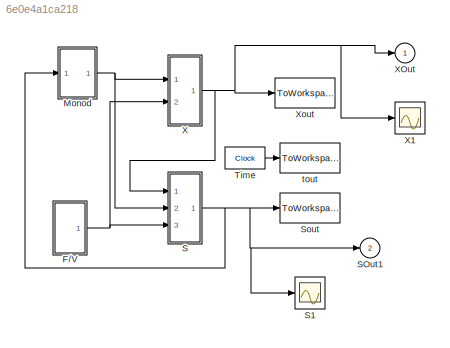
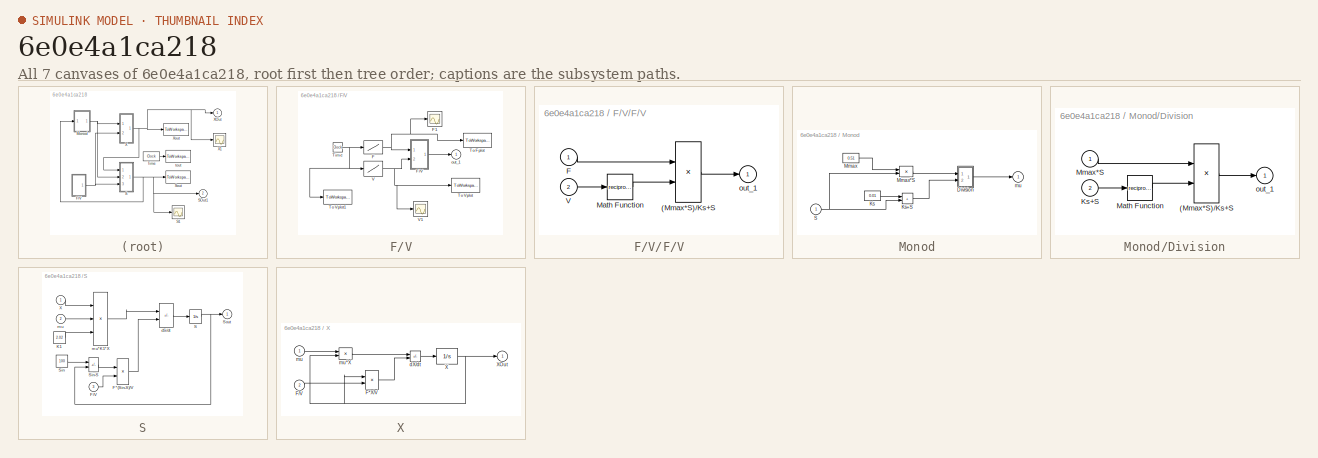
[diagram: thumbnail index - all 7 canvases of the model, root first then tree order]
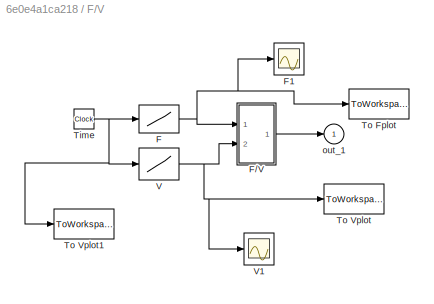
MODEL slx_6e0e4a1ca218
KIND model
CONFIG AbsTol = 1e-3
CONFIG EnableMultiTasking = on
CONFIG FixedStep = 0.056
CONFIG MaxStep = 0.001
CONFIG MinStep = auto
CONFIG RelTol = 1e-3
CONFIG SampleTimeConstraint = Unconstrained
CONFIG SolverName = VariableStepAuto
CONFIG StartTime = 6.69
CONFIG StopTime = 11.57
BLOCK [SubSystem] F//V
  Ports = [0, 1]
  RequestExecContextInheritance = off
  ShowPortLabels = none
BLOCK [Lookup] F//V/F
  InputValues = t
  Table = F
BLOCK [SubSystem] F//V/F//V
  Ports = [2, 1]
  RequestExecContextInheritance = off
  ShowPortLabels = none
BLOCK [Product] F//V/F//V/(Mmax*S)//Ks+S
  InputSameDT = on
  OutDataTypeStr = Inherit: Same as first input
  Ports = [2, 1]
  RndMeth = Zero
  SaturateOnIntegerOverflow = on
BLOCK [Inport] F//V/F//V/F
BLOCK [Math] F//V/F//V/Math Function
  Operator = reciprocal
  Ports = [1, 1]
  SignedPower = on
BLOCK [Inport] F//V/F//V/V
  Port = 2
BLOCK [Outport] F//V/F//V/out_1
BLOCK [Scope] F//V/F1
  Floating = off
  NumInputPorts = 1
  Ports = [1]
  ScopeSpecificationString = Simulink.scopes.TimeScopeBlockCfg('CurrentConfiguration', extmgr.ConfigurationSet(extmgr.Configuration('Core','General UI',true),extmgr.Configuration('Core','Source UI',true),extmgr.Configuration('Sources','WiredSimulink',true,'DataLoggingVariableName','ScopeData3'),extmgr.Configuration('Visuals','Time Domain',true,'SerializedDisplays',{struct('MinYLimReal','-0.02303','MaxYLimReal','0.20731','YLab...<+1443ch>
BLOCK [Clock] F//V/Time
BLOCK [ToWorkspace] F//V/To Fplot
  FixptAsFi = on
  MaxDataPoints = inf
  Ports = [1]
  SampleTime = -1
  VariableName = Fout
BLOCK [ToWorkspace] F//V/To Vplot
  FixptAsFi = on
  MaxDataPoints = inf
  Ports = [1]
  SampleTime = -1
  VariableName = Vout
BLOCK [ToWorkspace] F//V/To Vplot1
  FixptAsFi = on
  MaxDataPoints = inf
  Ports = [1]
  SampleTime = -1
  VariableName = tfeed
BLOCK [Lookup] F//V/V
  InputValues = t
  Table = V
BLOCK [Scope] F//V/V1
  Floating = off
  NumInputPorts = 1
  Ports = [1]
  ScopeSpecificationString = Simulink.scopes.TimeScopeBlockCfg('CurrentConfiguration', extmgr.ConfigurationSet(extmgr.Configuration('Core','General UI',true),extmgr.Configuration('Core','Source UI',true),extmgr.Configuration('Sources','WiredSimulink',true,'DataLoggingVariableName','ScopeData2'),extmgr.Configuration('Visuals','Time Domain',true,'SerializedDisplays',{struct('MinYLimReal','1.3231','MaxYLimReal','1.59209','YLabel...<+1410ch>
BLOCK [Outport] F//V/out_1
BLOCK [SubSystem] Monod
  Ports = [1, 1]
  RequestExecContextInheritance = off
  ShowPortLabels = none
BLOCK [SubSystem] Monod/Division
  Ports = [2, 1]
  RequestExecContextInheritance = off
  ShowPortLabels = none
BLOCK [Product] Monod/Division/(Mmax*S)//Ks+S
  InputSameDT = on
  OutDataTypeStr = Inherit: Same as first input
  Ports = [2, 1]
  RndMeth = Zero
  SaturateOnIntegerOverflow = on
BLOCK [Inport] Monod/Division/Ks+S
  Port = 2
BLOCK [Math] Monod/Division/Math Function
  Operator = reciprocal
  Ports = [1, 1]
  SignedPower = on
BLOCK [Inport] Monod/Division/Mmax*S
BLOCK [Outport] Monod/Division/out_1
BLOCK [Constant] Monod/Ks
  Value = 0.01
BLOCK [Sum] Monod/Ks+S
  IconShape = rectangular
  InputSameDT = on
  OutDataTypeStr = Inherit: Same as first input
  Ports = [2, 1]
  SaturateOnIntegerOverflow = on
BLOCK [Constant] Monod/Mmax
  Value = 0.51
BLOCK [Product] Monod/Mmax*S
  InputSameDT = on
  OutDataTypeStr = Inherit: Same as first input
  Ports = [2, 1]
  RndMeth = Zero
  SaturateOnIntegerOverflow = on
BLOCK [Inport] Monod/S
BLOCK [Outport] Monod/mu
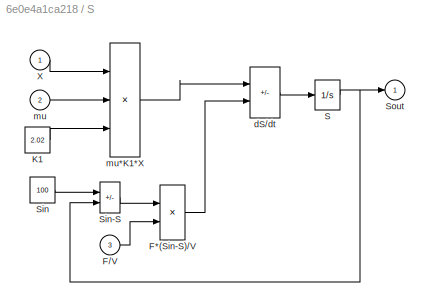
BLOCK [SubSystem] S
  Ports = [3, 1]
  RequestExecContextInheritance = off
  ShowPortLabels = none
BLOCK [Product] S/F*(Sin-S)//V
  InputSameDT = on
  OutDataTypeStr = Inherit: Same as first input
  Ports = [2, 1]
  RndMeth = Zero
  SaturateOnIntegerOverflow = on
BLOCK [Inport] S/F//V
  Port = 3
BLOCK [Constant] S/K1
  Value = 2.02
BLOCK [Integrator] S/S
  InitialCondition = Sd(1)
  LowerSaturationLimit = 0
  Ports = [1, 1]
  UpperSaturationLimit = 1000
BLOCK [Constant] S/Sin
  Value = 100
BLOCK [Sum] S/Sin-S
  IconShape = rectangular
  InputSameDT = on
  Inputs = +-
  OutDataTypeStr = Inherit: Same as first input
  Ports = [2, 1]
  SaturateOnIntegerOverflow = on
BLOCK [Outport] S/Sout
BLOCK [Inport] S/X
BLOCK [Sum] S/dS//dt
  IconShape = rectangular
  InputSameDT = on
  Inputs = -+
  OutDataTypeStr = Inherit: Same as first input
  Ports = [2, 1]
  SaturateOnIntegerOverflow = on
BLOCK [Inport] S/mu
  Port = 2
BLOCK [Product] S/mu*K1*X
  InputSameDT = on
  Inputs = 3
  OutDataTypeStr = Inherit: Same as first input
  Ports = [3, 1]
  RndMeth = Zero
  SaturateOnIntegerOverflow = on
BLOCK [Scope] S1
  Floating = off
  NumInputPorts = 1
  Ports = [1]
  ScopeSpecificationString = Simulink.scopes.TimeScopeBlockCfg('CurrentConfiguration', extmgr.ConfigurationSet(extmgr.Configuration('Core','General UI',true),extmgr.Configuration('Core','Source UI',true),extmgr.Configuration('Sources','WiredSimulink',true,'DataLoggingVariableName','ScopeData1'),extmgr.Configuration('Visuals','Time Domain',true,'SerializedDisplays',{struct('MinYLimReal','-0.09019','MaxYLimReal','0.91225','YLab...<+1416ch>
BLOCK [Outport] SOut1
  Port = 2
BLOCK [ToWorkspace] Sout
  MaxDataPoints = inf
  Ports = [1]
  SampleTime = -1
  VariableName = Sout
BLOCK [Clock] Time
  DisplayTime = on
BLOCK [SubSystem] X
  Ports = [2, 1]
  RequestExecContextInheritance = off
  ShowPortLabels = none
BLOCK [Product] X/F*X//V
  InputSameDT = on
  OutDataTypeStr = Inherit: Same as first input
  Ports = [2, 1]
  RndMeth = Zero
  SaturateOnIntegerOverflow = on
BLOCK [Inport] X/F//V
  Port = 2
BLOCK [Integrator] X/X
  InitialCondition = Xd(1)
  LowerSaturationLimit = 0
  Ports = [1, 1]
  UpperSaturationLimit = 1000
BLOCK [Outport] X/XOut
BLOCK [Sum] X/dX//dt
  IconShape = rectangular
  InputSameDT = on
  Inputs = +-
  OutDataTypeStr = Inherit: Same as first input
  Ports = [2, 1]
  SaturateOnIntegerOverflow = on
BLOCK [Inport] X/mu
BLOCK [Product] X/mu*X
  InputSameDT = on
  OutDataTypeStr = Inherit: Same as first input
  Ports = [2, 1]
  RndMeth = Zero
  SaturateOnIntegerOverflow = on
BLOCK [Scope] X1
  Floating = off
  NumInputPorts = 1
  Ports = [1]
  ScopeSpecificationString = Simulink.scopes.TimeScopeBlockCfg('CurrentConfiguration', extmgr.ConfigurationSet(extmgr.Configuration('Core','General UI',true),extmgr.Configuration('Core','Source UI',true),extmgr.Configuration('Sources','WiredSimulink',true),extmgr.Configuration('Visuals','Time Domain',true,'SerializedDisplays',{struct('MinYLimReal','0.38164','MaxYLimReal','9.08525','YLabelReal','','MinYLimMag','0.38164','MaxYL...<+1400ch>
BLOCK [Outport] XOut
BLOCK [ToWorkspace] Xout
  MaxDataPoints = inf
  Ports = [1]
  SampleTime = -1
  VariableName = Xout
BLOCK [ToWorkspace] tout
  MaxDataPoints = inf
  Ports = [1]
  SampleTime = -1
  VariableName = tout
LINE F//V/F//V/(Mmax*S)//Ks+S:1 -> F//V/F//V/out_1:1
LINE F//V/F//V/F:1 -> F//V/F//V/(Mmax*S)//Ks+S:1
LINE F//V/F//V/Math Function:1 -> F//V/F//V/(Mmax*S)//Ks+S:2
LINE F//V/F//V/V:1 -> F//V/F//V/Math Function:1
LINE F//V/F//V:1 -> F//V/out_1:1
NET F//V/F:1 -> F//V/F//V:1, F//V/F1:1, F//V/To Fplot:1
NET F//V/Time:1 -> F//V/F:1, F//V/To Vplot1:1, F//V/V:1
NET F//V/V:1 -> F//V/F//V:2, F//V/To Vplot:1, F//V/V1:1
NET F//V:1 -> S:3, X:2
LINE Monod/Division/(Mmax*S)//Ks+S:1 -> Monod/Division/out_1:1
LINE Monod/Division/Ks+S:1 -> Monod/Division/Math Function:1
LINE Monod/Division/Math Function:1 -> Monod/Division/(Mmax*S)//Ks+S:2
LINE Monod/Division/Mmax*S:1 -> Monod/Division/(Mmax*S)//Ks+S:1
LINE Monod/Division:1 -> Monod/mu:1
LINE Monod/Ks+S:1 -> Monod/Division:2
LINE Monod/Ks:1 -> Monod/Ks+S:1
LINE Monod/Mmax*S:1 -> Monod/Division:1
LINE Monod/Mmax:1 -> Monod/Mmax*S:1
NET Monod/S:1 -> Monod/Ks+S:2, Monod/Mmax*S:2
NET Monod:1 -> S:2, X:1
LINE S/F*(Sin-S)//V:1 -> S/dS//dt:2
LINE S/F//V:1 -> S/F*(Sin-S)//V:2
LINE S/K1:1 -> S/mu*K1*X:3
NET S/S:1 -> S/Sin-S:2, S/Sout:1
LINE S/Sin-S:1 -> S/F*(Sin-S)//V:1
LINE S/Sin:1 -> S/Sin-S:1
LINE S/X:1 -> S/mu*K1*X:1
LINE S/dS//dt:1 -> S/S:1
LINE S/mu*K1*X:1 -> S/dS//dt:1
LINE S/mu:1 -> S/mu*K1*X:2
NET S:1 -> Monod:1, S1:1, SOut1:1, Sout:1
LINE Time:1 -> tout:1
LINE X/F*X//V:1 -> X/dX//dt:2
LINE X/F//V:1 -> X/F*X//V:2
NET X/X:1 -> X/F*X//V:1, X/XOut:1, X/mu*X:2
LINE X/dX//dt:1 -> X/X:1
LINE X/mu*X:1 -> X/dX//dt:1
LINE X/mu:1 -> X/mu*X:1
NET X:1 -> S:1, X1:1, XOut:1, Xout:1
note: NET lines group one-source signal fan-out (src -> all destinations, sorted); 1:1 wires keep LINE
